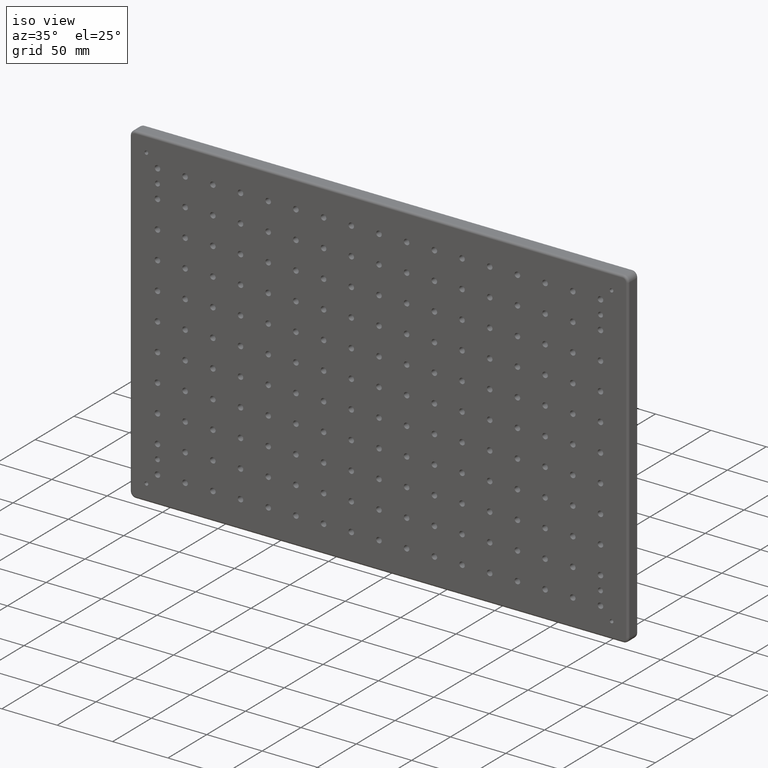
[diagram: clean part render]
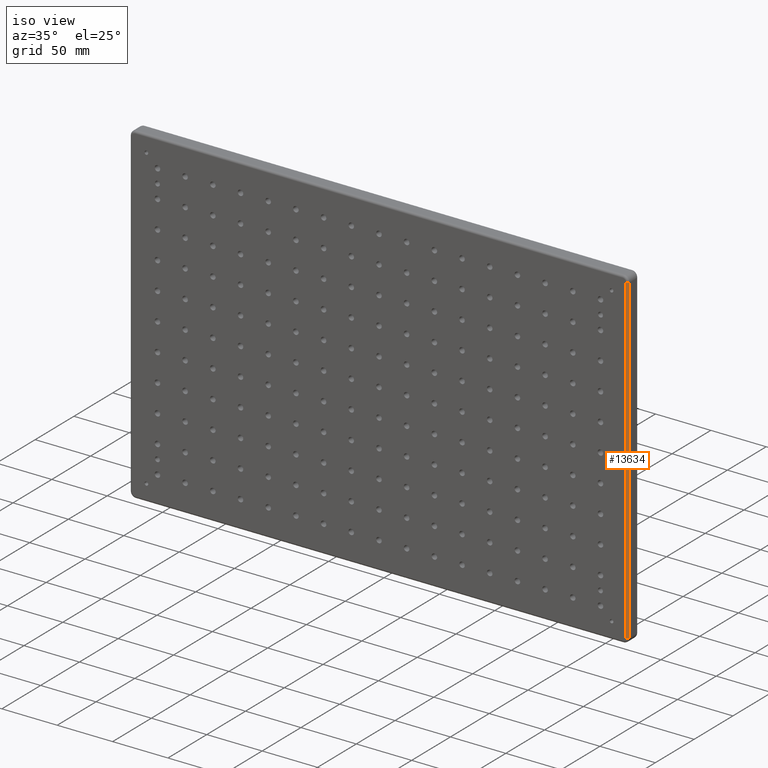
[diagram: same view with one face highlighted and labeled with its STEP entity id]
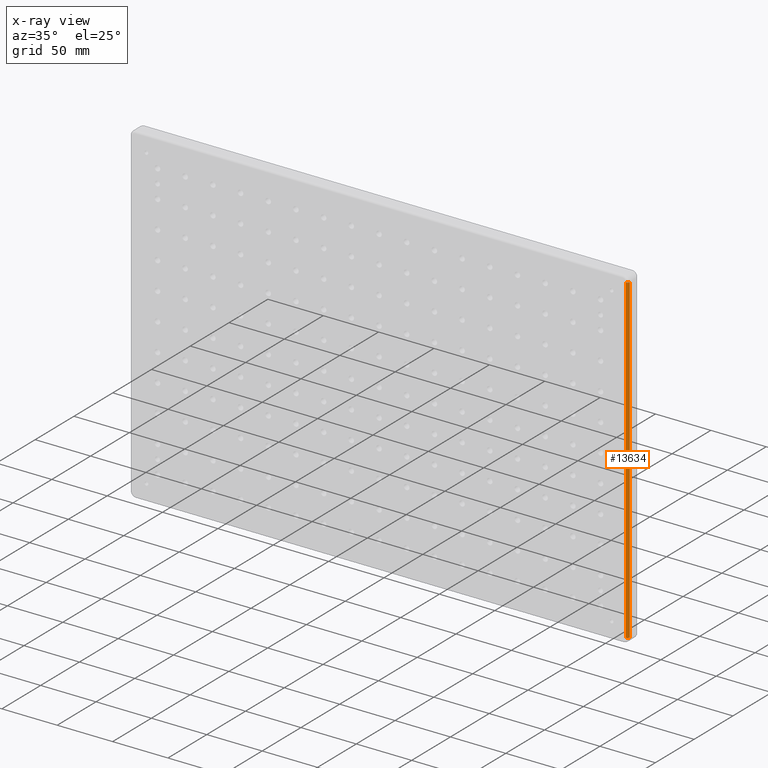
[diagram: x-ray of the same camera — body ghosted, the highlighted face saturated]
A machine part, iso view. The second image highlights one B-rep face of the part: STEP entity #13634.
The next image is the same camera in x-ray: the body ghosted, the highlighted face saturated — about 0% of this face is hidden behind the body in this view.
In plain terms, the highlighted cylindrical surface (edge-blend (fillet) strip) has radius 2 mm, axis along (0, 0, 1).
Its self-contained STEP definition (entity closure, byte-faithful):
#231 = DIRECTION ( 'NONE',  ( 1.000000000000000000, 0.0000000000000000000, 0.0000000000000000000 ) ) ;
#1177 = EDGE_CURVE ( 'NONE', #14810, #11253, #7519, .T. ) ;
#1552 = CARTESIAN_POINT ( 'NONE',  ( 225.0000000000000000, -4.500000000000000000, -145.0000000000000000 ) ) ;
#1664 = ORIENTED_EDGE ( 'NONE', *, *, #1177, .T. ) ;
#1829 = ORIENTED_EDGE ( 'NONE', *, *, #3264, .F. ) ;
#2004 = EDGE_CURVE ( 'NONE', #9198, #11253, #11636, .T. ) ;
#2560 = EDGE_LOOP ( 'NONE', ( #1664, #11150, #7130, #1829 ) ) ;
#2643 = DIRECTION ( 'NONE',  ( 0.0000000000000000000, 0.0000000000000000000, 1.000000000000000000 ) ) ;
#3264 = EDGE_CURVE ( 'NONE', #14810, #6771, #4631, .T. ) ;
#3468 = CARTESIAN_POINT ( 'NONE',  ( 225.0000000000000000, -4.500000000000000000, 145.0000000000000000 ) ) ;
#3761 = CARTESIAN_POINT ( 'NONE',  ( 223.0000000000000000, -4.500000000000000000, 145.0000000000000000 ) ) ;
#4414 = DIRECTION ( 'NONE',  ( 1.000000000000000000, 0.0000000000000000000, 0.0000000000000000000 ) ) ;
#4631 = LINE ( 'NONE', #13369, #12506 ) ;
#5093 = DIRECTION ( 'NONE',  ( 0.0000000000000000000, 0.0000000000000000000, -1.000000000000000000 ) ) ;
#5115 = AXIS2_PLACEMENT_3D ( 'NONE', #3761, #12127, #231 ) ;
#6771 = VERTEX_POINT ( 'NONE', #13481 ) ;
#7130 = ORIENTED_EDGE ( 'NONE', *, *, #12748, .F. ) ;
#7519 = CIRCLE ( 'NONE', #8296, 2.000000000000001800 ) ;
#8296 = AXIS2_PLACEMENT_3D ( 'NONE', #9132, #13828, #4414 ) ;
#8583 = CARTESIAN_POINT ( 'NONE',  ( 223.0000000000000000, -6.500000000000000000, -145.0000000000000000 ) ) ;
#8699 = DIRECTION ( 'NONE',  ( 1.000000000000000000, 0.0000000000000000000, 0.0000000000000000000 ) ) ;
#8793 = AXIS2_PLACEMENT_3D ( 'NONE', #9732, #2643, #8699 ) ;
#8875 = CYLINDRICAL_SURFACE ( 'NONE', #8793, 2.000000000000001800 ) ;
#9132 = CARTESIAN_POINT ( 'NONE',  ( 223.0000000000000000, -4.500000000000000000, -145.0000000000000000 ) ) ;
#9198 = VERTEX_POINT ( 'NONE', #3468 ) ;
#9732 = CARTESIAN_POINT ( 'NONE',  ( 223.0000000000000000, -4.500000000000000000, 150.0000000000000000 ) ) ;
#11106 = DIRECTION ( 'NONE',  ( -0.0000000000000000000, -0.0000000000000000000, 1.000000000000000000 ) ) ;
#11150 = ORIENTED_EDGE ( 'NONE', *, *, #2004, .F. ) ;
#11253 = VERTEX_POINT ( 'NONE', #15022 ) ;
#11636 = LINE ( 'NONE', #1552, #13321 ) ;
#12127 = DIRECTION ( 'NONE',  ( -0.0000000000000000000, 0.0000000000000000000, 1.000000000000000000 ) ) ;
#12506 = VECTOR ( 'NONE', #11106, 1000.000000000000000 ) ;
#12748 = EDGE_CURVE ( 'NONE', #6771, #9198, #13790, .T. ) ;
#13321 = VECTOR ( 'NONE', #5093, 1000.000000000000000 ) ;
#13369 = CARTESIAN_POINT ( 'NONE',  ( 223.0000000000000000, -6.500000000000000000, 145.0000000000000000 ) ) ;
#13481 = CARTESIAN_POINT ( 'NONE',  ( 223.0000000000000000, -6.500000000000000000, 145.0000000000000000 ) ) ;
#13634 = ADVANCED_FACE ( 'NONE', ( #14701 ), #8875, .T. ) ;
#13790 = CIRCLE ( 'NONE', #5115, 2.000000000000001800 ) ;
#13828 = DIRECTION ( 'NONE',  ( -0.0000000000000000000, 0.0000000000000000000, 1.000000000000000000 ) ) ;
#14701 = FACE_OUTER_BOUND ( 'NONE', #2560, .T. ) ;
#14810 = VERTEX_POINT ( 'NONE', #8583 ) ;
#15022 = CARTESIAN_POINT ( 'NONE',  ( 225.0000000000000000, -4.500000000000000000, -145.0000000000000000 ) ) ;